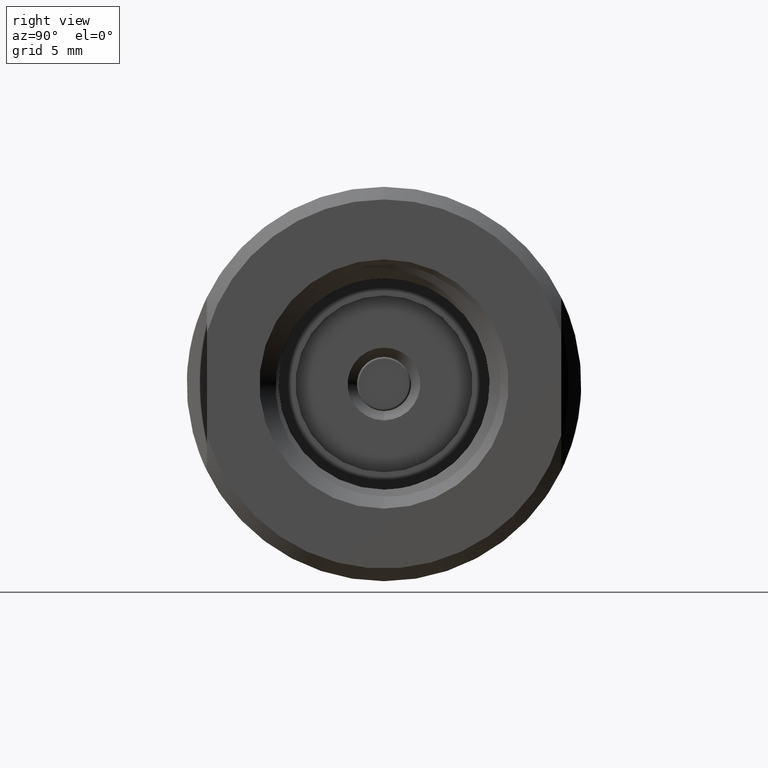
[diagram: clean part render]
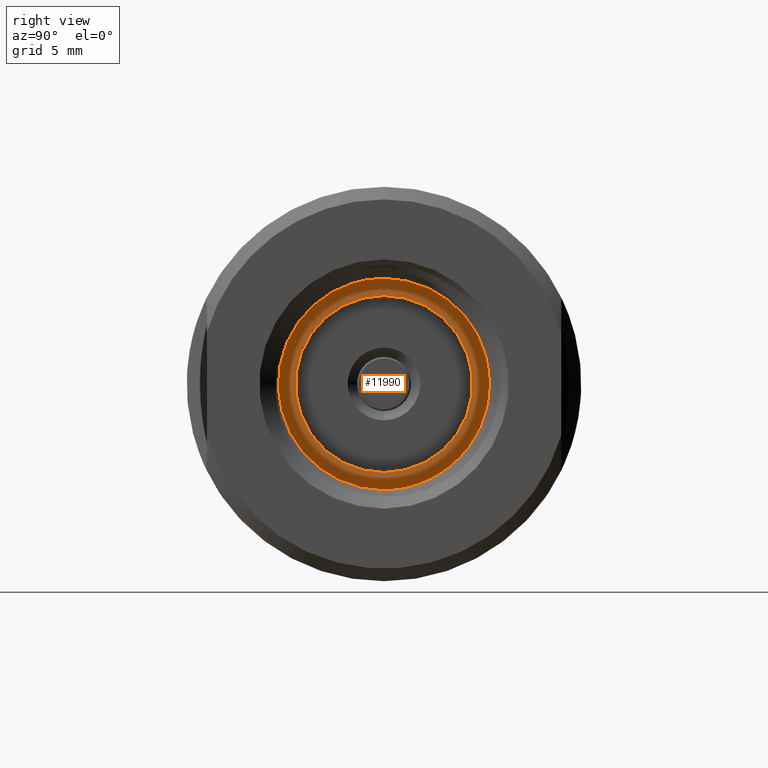
[diagram: same view with one face highlighted and labeled with its STEP entity id]
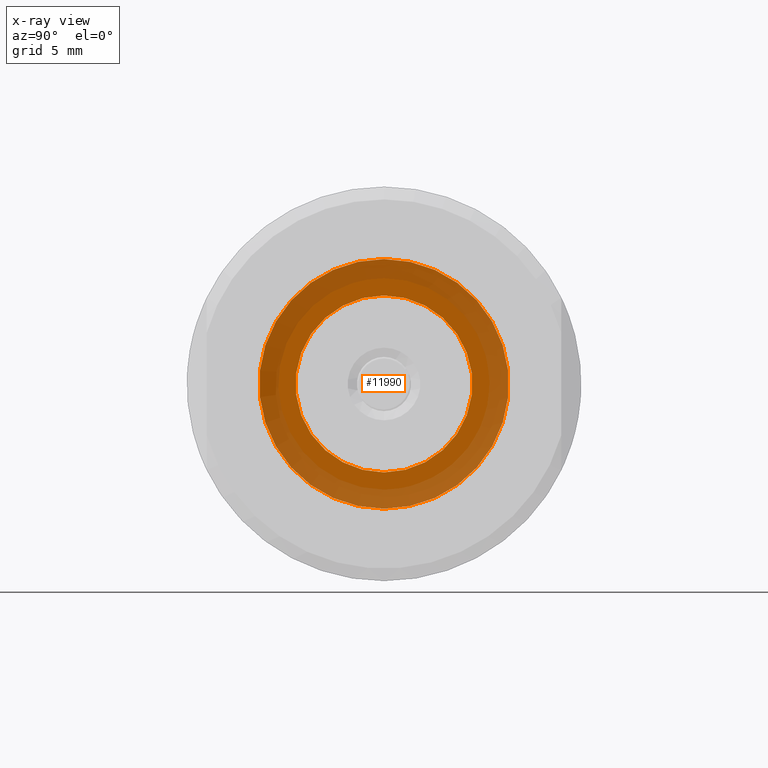
[diagram: x-ray of the same camera — body ghosted, the highlighted face saturated]
A machine part, right view. The second image highlights one B-rep face of the part: STEP entity #11990.
The next image is the same camera in x-ray: the body ghosted, the highlighted face saturated — about 57% of this face is hidden behind the body in this view.
In plain terms, the highlighted planar face has unit normal (1, 0, 0).
Its self-contained STEP definition (entity closure, byte-faithful):
#171 = VERTEX_POINT ( 'NONE', #7553 ) ;
#553 = ORIENTED_EDGE ( 'NONE', *, *, #11945, .F. ) ;
#667 = VERTEX_POINT ( 'NONE', #11184 ) ;
#874 = FACE_OUTER_BOUND ( 'NONE', #10317, .T. ) ;
#1323 = DIRECTION ( 'NONE',  ( 0.0000000000000000000, 0.0000000000000000000, 1.000000000000000000 ) ) ;
#2662 = CIRCLE ( 'NONE', #3246, 0.1400000000000000688 ) ;
#3246 = AXIS2_PLACEMENT_3D ( 'NONE', #8554, #7540, #8678 ) ;
#3282 = DIRECTION ( 'NONE',  ( -1.000000000000000000, -0.0000000000000000000, -0.0000000000000000000 ) ) ;
#3511 = CIRCLE ( 'NONE', #11024, 0.1975000000000000921 ) ;
#3546 = PLANE ( 'NONE',  #5107 ) ;
#3669 = CARTESIAN_POINT ( 'NONE',  ( 0.2179999999999999716, 0.0000000000000000000, 0.0000000000000000000 ) ) ;
#4672 = DIRECTION ( 'NONE',  ( -1.000000000000000000, -0.0000000000000000000, -0.0000000000000000000 ) ) ;
#5098 = DIRECTION ( 'NONE',  ( 0.0000000000000000000, 0.0000000000000000000, 1.000000000000000000 ) ) ;
#5107 = AXIS2_PLACEMENT_3D ( 'NONE', #5686, #5448, #5570 ) ;
#5204 = VERTEX_POINT ( 'NONE', #10468 ) ;
#5448 = DIRECTION ( 'NONE',  ( 1.000000000000000000, 0.0000000000000000000, 0.0000000000000000000 ) ) ;
#5570 = DIRECTION ( 'NONE',  ( 0.0000000000000000000, 0.0000000000000000000, -1.000000000000000000 ) ) ;
#5686 = CARTESIAN_POINT ( 'NONE',  ( 0.2179999999999999716, 0.0000000000000000000, 0.0000000000000000000 ) ) ;
#5779 = ORIENTED_EDGE ( 'NONE', *, *, #8290, .T. ) ;
#6392 = CARTESIAN_POINT ( 'NONE',  ( 0.2179999999999999716, 0.0000000000000000000, 0.0000000000000000000 ) ) ;
#6937 = CIRCLE ( 'NONE', #8566, 0.1975000000000000921 ) ;
#7540 = DIRECTION ( 'NONE',  ( -1.000000000000000000, -0.0000000000000000000, -0.0000000000000000000 ) ) ;
#7553 = CARTESIAN_POINT ( 'NONE',  ( 0.2179999999999999716, 1.714505518806295624E-17, -0.1400000000000000688 ) ) ;
#7590 = ORIENTED_EDGE ( 'NONE', *, *, #10718, .F. ) ;
#8093 = DIRECTION ( 'NONE',  ( -1.000000000000000000, -0.0000000000000000000, -0.0000000000000000000 ) ) ;
#8290 = EDGE_CURVE ( 'NONE', #171, #9689, #8741, .T. ) ;
#8315 = EDGE_CURVE ( 'NONE', #9689, #171, #2662, .T. ) ;
#8554 = CARTESIAN_POINT ( 'NONE',  ( 0.2179999999999999716, 0.0000000000000000000, 0.0000000000000000000 ) ) ;
#8566 = AXIS2_PLACEMENT_3D ( 'NONE', #6392, #8093, #5098 ) ;
#8678 = DIRECTION ( 'NONE',  ( 0.0000000000000000000, 0.0000000000000000000, 1.000000000000000000 ) ) ;
#8741 = CIRCLE ( 'NONE', #11199, 0.1400000000000000688 ) ;
#8843 = CARTESIAN_POINT ( 'NONE',  ( 0.2179999999999999716, 0.0000000000000000000, 0.1400000000000000688 ) ) ;
#9270 = ORIENTED_EDGE ( 'NONE', *, *, #8315, .T. ) ;
#9689 = VERTEX_POINT ( 'NONE', #8843 ) ;
#10317 = EDGE_LOOP ( 'NONE', ( #553, #7590 ) ) ;
#10419 = FACE_BOUND ( 'NONE', #12487, .T. ) ;
#10468 = CARTESIAN_POINT ( 'NONE',  ( 0.2179999999999999716, 2.418677428316023392E-17, -0.1975000000000000921 ) ) ;
#10718 = EDGE_CURVE ( 'NONE', #5204, #667, #6937, .T. ) ;
#11024 = AXIS2_PLACEMENT_3D ( 'NONE', #11124, #3282, #1323 ) ;
#11124 = CARTESIAN_POINT ( 'NONE',  ( 0.2179999999999999716, 0.0000000000000000000, 0.0000000000000000000 ) ) ;
#11184 = CARTESIAN_POINT ( 'NONE',  ( 0.2179999999999999716, 0.0000000000000000000, 0.1975000000000000921 ) ) ;
#11199 = AXIS2_PLACEMENT_3D ( 'NONE', #3669, #4672, #12574 ) ;
#11945 = EDGE_CURVE ( 'NONE', #667, #5204, #3511, .T. ) ;
#11990 = ADVANCED_FACE ( 'NONE', ( #10419, #874 ), #3546, .T. ) ;
#12487 = EDGE_LOOP ( 'NONE', ( #9270, #5779 ) ) ;
#12574 = DIRECTION ( 'NONE',  ( 0.0000000000000000000, 0.0000000000000000000, 1.000000000000000000 ) ) ;